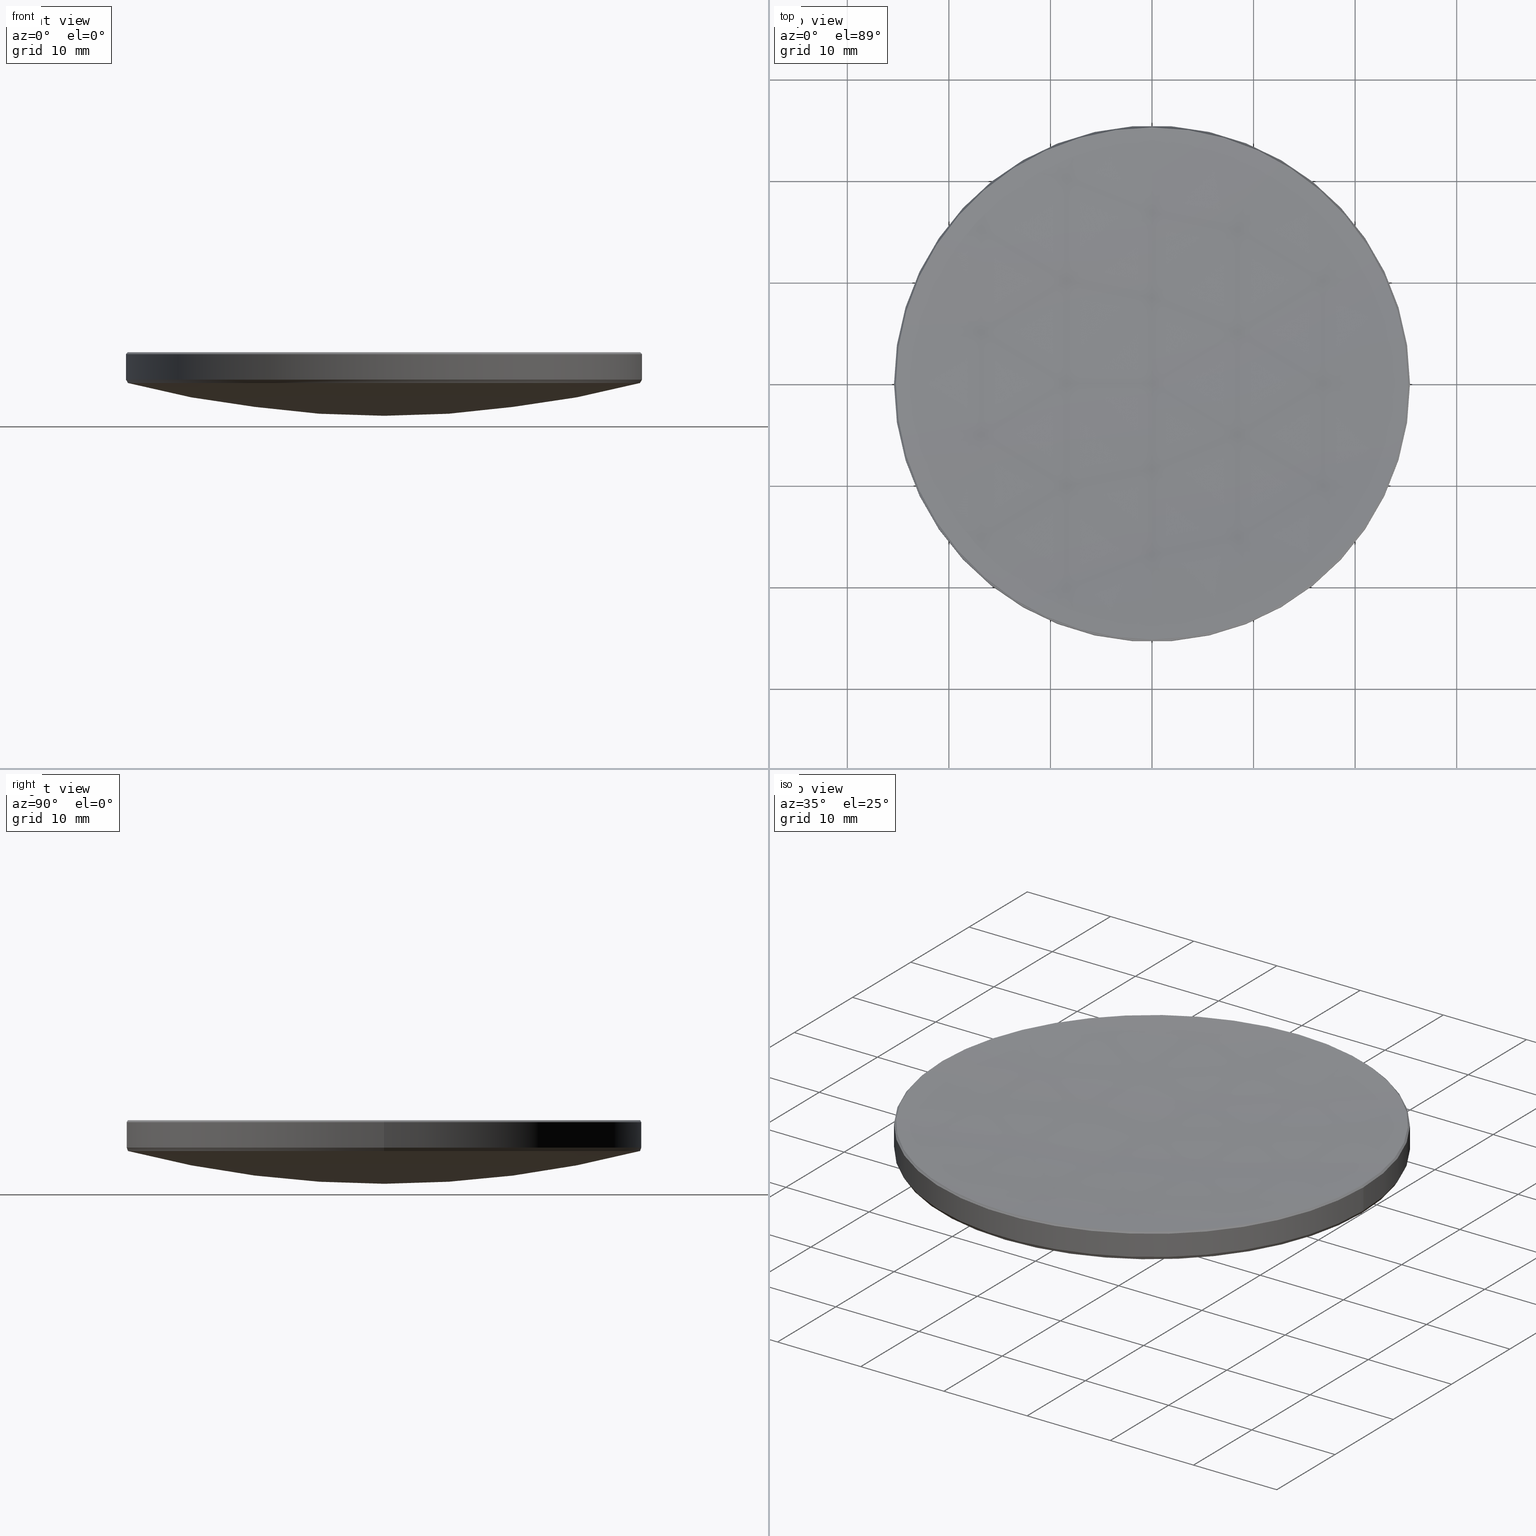
[diagram: canonical four-view strip — front | top / right | iso, engineering-drawing reading convention]
A machine part, canonical four-view strip (front | top / right | iso — engineering-drawing reading convention). The complete STEP part file that produces these views, byte-faithful:
ISO-10303-21;
HEADER;
FILE_DESCRIPTION (( 'STEP AP214' ),
    '1' );
FILE_NAME ('GLM1-050B-300-VIS.STEP',
    '2024-08-09T02:40:26',
    ( 'Windows User' ),
    ( 'P R C' ),
    'SwSTEP 2.0',
    'SolidWorks 2022',
    '' );
FILE_SCHEMA (( 'AUTOMOTIVE_DESIGN' ));
ENDSEC;

DATA;
#1 = ORIENTED_EDGE ( 'NONE', *, *, #6, .T. ) ;
#2 = AXIS2_PLACEMENT_3D ( 'NONE', #86, #295, #62 ) ;
#3 = EDGE_LOOP ( 'NONE', ( #27, #288, #5, #120 ) ) ;
#4 = DIRECTION ( 'NONE',  ( -0.000000000000000000, -0.000000000000000000, -1.000000000000000000 ) ) ;
#5 = ORIENTED_EDGE ( 'NONE', *, *, #77, .T. ) ;
#6 = EDGE_CURVE ( 'NONE', #25, #98, #66, .T. ) ;
#7 = DIRECTION ( 'NONE',  ( -0.000000000000000000, -0.000000000000000000, 1.000000000000000000 ) ) ;
#8 = ADVANCED_BREP_SHAPE_REPRESENTATION ( 'GLM1-050B-300-VIS', ( #217, #56 ), #20 ) ;
#9 = AXIS2_PLACEMENT_3D ( 'NONE', #208, #127, #180 ) ;
#10 = CARTESIAN_POINT ( 'NONE',  ( -25.21668983323140623, 0.000000000000000000, 15.98331016676862681 ) ) ;
#11 = DIRECTION ( 'NONE',  ( 0.000000000000000000, 0.000000000000000000, -1.000000000000000000 ) ) ;
#12 = FACE_OUTER_BOUND ( 'NONE', #306, .T. ) ;
#13 = DIRECTION ( 'NONE',  ( 1.000000000000000000, -0.000000000000000000, 0.000000000000000000 ) ) ;
#14 = CARTESIAN_POINT ( 'NONE',  ( 0.000000000000000000, 0.000000000000000000, 20.00000000000000000 ) ) ;
#15 = CYLINDRICAL_SURFACE ( 'NONE', #296, 25.39999999999999858 ) ;
#16 = EDGE_CURVE ( 'NONE', #144, #52, #269, .T. ) ;
#17 = DIRECTION ( 'NONE',  ( 1.000000000000000000, 0.000000000000000000, 0.000000000000000000 ) ) ;
#18 = AXIS2_PLACEMENT_3D ( 'NONE', #258, #294, #161 ) ;
#19 = ADVANCED_FACE ( 'NONE', ( #58 ), #176, .T. ) ;
#20 =( GEOMETRIC_REPRESENTATION_CONTEXT ( 3 ) GLOBAL_UNCERTAINTY_ASSIGNED_CONTEXT ( ( #272 ) ) GLOBAL_UNIT_ASSIGNED_CONTEXT ( ( #26, #219, #199 ) ) REPRESENTATION_CONTEXT ( 'NONE', 'WORKASPACE' ) );
#21 = VERTEX_POINT ( 'NONE', #266 ) ;
#22 = CARTESIAN_POINT ( 'NONE',  ( 0.000000000000000000, 0.000000000000000000, 293.9618937912173351 ) ) ;
#23 = EDGE_LOOP ( 'NONE', ( #309, #148, #96, #281 ) ) ;
#24 = ORIENTED_EDGE ( 'NONE', *, *, #16, .F. ) ;
#25 = VERTEX_POINT ( 'NONE', #204 ) ;
#26 =( LENGTH_UNIT ( ) NAMED_UNIT ( * ) SI_UNIT ( .MILLI., .METRE. ) );
#27 = ORIENTED_EDGE ( 'NONE', *, *, #142, .F. ) ;
#28 = CARTESIAN_POINT ( 'NONE',  ( 0.000000000000000000, 0.000000000000000000, 109.8031321807306142 ) ) ;
#29 = DIRECTION ( 'NONE',  ( 1.000000000000000000, 0.000000000000000000, 0.000000000000000000 ) ) ;
#30 = UNCERTAINTY_MEASURE_WITH_UNIT (LENGTH_MEASURE( 1.000000000000000082E-05 ), #203, 'distance_accuracy_value', 'NONE');
#31 = CARTESIAN_POINT ( 'NONE',  ( 25.21668983323140623, 3.088153848935844384E-15, 15.98331016676862681 ) ) ;
#32 = DIRECTION ( 'NONE',  ( 1.000000000000000000, 0.000000000000000000, 0.000000000000000000 ) ) ;
#33 = DIRECTION ( 'NONE',  ( 1.000000000000000000, 0.000000000000000000, 0.000000000000000000 ) ) ;
#34 = FACE_OUTER_BOUND ( 'NONE', #147, .T. ) ;
#35 = EDGE_LOOP ( 'NONE', ( #331, #198, #46, #290, #123 ) ) ;
#36 = CARTESIAN_POINT ( 'NONE',  ( 0.000000000000000000, 0.000000000000000000, 15.98331016676862681 ) ) ;
#37 = DIRECTION ( 'NONE',  ( 0.000000000000000000, 0.000000000000000000, -1.000000000000000000 ) ) ;
#38 = CIRCLE ( 'NONE', #215, 25.21668983323140623 ) ;
#39 = FACE_OUTER_BOUND ( 'NONE', #23, .T. ) ;
#40 = EDGE_CURVE ( 'NONE', #21, #71, #202, .T. ) ;
#41 = DIRECTION ( 'NONE',  ( -1.000000000000000000, 0.000000000000000000, 0.000000000000000000 ) ) ;
#42 = CIRCLE ( 'NONE', #329, 25.20669079081241648 ) ;
#43 = AXIS2_PLACEMENT_3D ( 'NONE', #113, #183, #131 ) ;
#44 = AXIS2_PLACEMENT_3D ( 'NONE', #230, #105, #254 ) ;
#45 = CARTESIAN_POINT ( 'NONE',  ( 0.000000000000000000, 6.128132582933356375E-15, 9.723132180730592822 ) ) ;
#46 = ORIENTED_EDGE ( 'NONE', *, *, #305, .F. ) ;
#47 = SURFACE_SIDE_STYLE ('',( #249 ) ) ;
#48 = ORIENTED_EDGE ( 'NONE', *, *, #264, .F. ) ;
#49 = AXIS2_PLACEMENT_3D ( 'NONE', #28, #13, #228 ) ;
#50 = EDGE_CURVE ( 'NONE', #253, #218, #38, .T. ) ;
#51 = ORIENTED_EDGE ( 'NONE', *, *, #248, .F. ) ;
#52 = VERTEX_POINT ( 'NONE', #55 ) ;
#53 = ADVANCED_FACE ( 'NONE', ( #83 ), #60, .T. ) ;
#54 = ORIENTED_EDGE ( 'NONE', *, *, #70, .T. ) ;
#55 = CARTESIAN_POINT ( 'NONE',  ( 25.39999999999999858, 3.110602869834276865E-15, 15.79999999999998117 ) ) ;
#56 = AXIS2_PLACEMENT_3D ( 'NONE', #304, #193, #72 ) ;
#57 = VERTEX_POINT ( 'NONE', #206 ) ;
#58 = FACE_OUTER_BOUND ( 'NONE', #286, .T. ) ;
#59 = CARTESIAN_POINT ( 'NONE',  ( -25.21668983323140623, 0.000000000000000000, 15.98331016676862681 ) ) ;
#60 = SPHERICAL_SURFACE ( 'NONE', #18, 100.0800000000000125 ) ;
#61 = CARTESIAN_POINT ( 'NONE',  ( 0.000000000000000000, 0.000000000000000000, 293.9618937912173351 ) ) ;
#62 = DIRECTION ( 'NONE',  ( 0.000000000000000000, 1.000000000000000000, 0.000000000000000000 ) ) ;
#63 = EDGE_CURVE ( 'NONE', #144, #253, #303, .T. ) ;
#64 = AXIS2_PLACEMENT_3D ( 'NONE', #118, #213, #138 ) ;
#65 = DIRECTION ( 'NONE',  ( -0.000000000000000000, -0.000000000000000000, 1.000000000000000000 ) ) ;
#66 = CIRCLE ( 'NONE', #256, 25.20669079081241648 ) ;
#67 = AXIS2_PLACEMENT_3D ( 'NONE', #263, #7, #33 ) ;
#68 = ORIENTED_EDGE ( 'NONE', *, *, #114, .F. ) ;
#69 =( LENGTH_UNIT ( ) NAMED_UNIT ( * ) SI_UNIT ( .MILLI., .METRE. ) );
#70 = EDGE_CURVE ( 'NONE', #328, #78, #184, .T. ) ;
#71 = VERTEX_POINT ( 'NONE', #80 ) ;
#72 = DIRECTION ( 'NONE',  ( 1.000000000000000000, 0.000000000000000000, 0.000000000000000000 ) ) ;
#73 = ORIENTED_EDGE ( 'NONE', *, *, #226, .F. ) ;
#74 = CIRCLE ( 'NONE', #267, 25.21668983323140623 ) ;
#75 = PRODUCT_CONTEXT ( 'NONE', #244, 'mechanical' ) ;
#76 = VERTEX_POINT ( 'NONE', #210 ) ;
#77 = EDGE_CURVE ( 'NONE', #255, #144, #301, .T. ) ;
#78 = VERTEX_POINT ( 'NONE', #153 ) ;
#79 =( NAMED_UNIT ( * ) PLANE_ANGLE_UNIT ( ) SI_UNIT ( $, .RADIAN. ) );
#80 = CARTESIAN_POINT ( 'NONE',  ( -25.39999999999999858, 0.000000000000000000, 13.28032383718598375 ) ) ;
#81 = CONICAL_SURFACE ( 'NONE', #188, 25.39999999999999858, 0.5287944249354518123 ) ;
#82 = CARTESIAN_POINT ( 'NONE',  ( 0.000000000000000000, 0.000000000000000000, 293.9618937912173351 ) ) ;
#83 = FACE_OUTER_BOUND ( 'NONE', #223, .T. ) ;
#84 = DIRECTION ( 'NONE',  ( 1.000000000000000000, 0.000000000000000000, 0.000000000000000000 ) ) ;
#85 = LINE ( 'NONE', #259, #278 ) ;
#86 = CARTESIAN_POINT ( 'NONE',  ( 0.000000000000000000, 0.000000000000000000, 109.8031321807306142 ) ) ;
#87 = AXIS2_PLACEMENT_3D ( 'NONE', #209, #300, #299 ) ;
#88 = CARTESIAN_POINT ( 'NONE',  ( 0.000000000000000000, 0.000000000000000000, 15.79999999999998117 ) ) ;
#89 = EDGE_CURVE ( 'NONE', #71, #76, #320, .T. ) ;
#90 = DIRECTION ( 'NONE',  ( -1.000000000000000000, 0.000000000000000000, 0.000000000000000000 ) ) ;
#91 = DIRECTION ( 'NONE',  ( -0.000000000000000000, -0.000000000000000000, -1.000000000000000000 ) ) ;
#92 = AXIS2_PLACEMENT_3D ( 'NONE', #61, #238, #37 ) ;
#93 = PRODUCT_DEFINITION_SHAPE ( 'NONE', 'NONE',  #194 ) ;
#94 = EDGE_LOOP ( 'NONE', ( #102, #247, #246, #190 ) ) ;
#95 = EDGE_CURVE ( 'NONE', #218, #21, #110, .T. ) ;
#96 = ORIENTED_EDGE ( 'NONE', *, *, #305, .T. ) ;
#97 = PRODUCT_DEFINITION_FORMATION_WITH_SPECIFIED_SOURCE ( '�κ�', '', #222, .NOT_KNOWN. ) ;
#98 = VERTEX_POINT ( 'NONE', #236 ) ;
#99 = ORIENTED_EDGE ( 'NONE', *, *, #50, .F. ) ;
#100 = CIRCLE ( 'NONE', #92, 279.1200000000000614 ) ;
#101 = CARTESIAN_POINT ( 'NONE',  ( 0.000000000000000000, 1.709117072890046227E-14, 14.84189379121730923 ) ) ;
#102 = ORIENTED_EDGE ( 'NONE', *, *, #325, .F. ) ;
#103 = DIRECTION ( 'NONE',  ( 0.000000000000000000, 1.000000000000000000, 0.000000000000000000 ) ) ;
#104 = CARTESIAN_POINT ( 'NONE',  ( -25.39999999999999858, 0.000000000000000000, 20.00000000000000000 ) ) ;
#105 = DIRECTION ( 'NONE',  ( -0.000000000000000000, -0.000000000000000000, 1.000000000000000000 ) ) ;
#106 = DIRECTION ( 'NONE',  ( -1.000000000000000000, 0.000000000000000000, 0.000000000000000000 ) ) ;
#107 =( GEOMETRIC_REPRESENTATION_CONTEXT ( 3 ) GLOBAL_UNCERTAINTY_ASSIGNED_CONTEXT ( ( #30 ) ) GLOBAL_UNIT_ASSIGNED_CONTEXT ( ( #203, #79, #315 ) ) REPRESENTATION_CONTEXT ( 'NONE', 'WORKASPACE' ) );
#108 = DIRECTION ( 'NONE',  ( -0.000000000000000000, -0.000000000000000000, 1.000000000000000000 ) ) ;
#109 = ADVANCED_FACE ( 'NONE', ( #260 ), #181, .F. ) ;
#110 = LINE ( 'NONE', #10, #141 ) ;
#111 = DIRECTION ( 'NONE',  ( -1.000000000000000000, 0.000000000000000000, 0.000000000000000000 ) ) ;
#112 = VECTOR ( 'NONE', #158, 1000.000000000000114 ) ;
#113 = CARTESIAN_POINT ( 'NONE',  ( 0.000000000000000000, 0.000000000000000000, 13.28032383718598375 ) ) ;
#114 = EDGE_CURVE ( 'NONE', #52, #21, #224, .T. ) ;
#115 = VECTOR ( 'NONE', #116, 1000.000000000000000 ) ;
#116 = DIRECTION ( 'NONE',  ( -0.5044927953932116793, 6.178254870711972724E-17, 0.8634159017509134282 ) ) ;
#117 = CARTESIAN_POINT ( 'NONE',  ( 0.000000000000000000, 0.000000000000000000, 20.00000000000000000 ) ) ;
#118 = CARTESIAN_POINT ( 'NONE',  ( 0.000000000000000000, 0.000000000000000000, 12.94948413701273182 ) ) ;
#119 = ADVANCED_FACE ( 'NONE', ( #12 ), #318, .T. ) ;
#120 = ORIENTED_EDGE ( 'NONE', *, *, #63, .T. ) ;
#121 = ORIENTED_EDGE ( 'NONE', *, *, #89, .F. ) ;
#122 = ORIENTED_EDGE ( 'NONE', *, *, #226, .T. ) ;
#123 = ORIENTED_EDGE ( 'NONE', *, *, #129, .F. ) ;
#124 = EDGE_LOOP ( 'NONE', ( #250, #174, #216, #192 ) ) ;
#125 = PRESENTATION_LAYER_ASSIGNMENT (  '', '', ( #146 ) ) ;
#126 = CARTESIAN_POINT ( 'NONE',  ( 0.000000000000000000, 0.000000000000000000, 12.94948413701273182 ) ) ;
#127 = DIRECTION ( 'NONE',  ( -1.000000000000000000, 1.224646799147353207E-16, 0.000000000000000000 ) ) ;
#128 = DIRECTION ( 'NONE',  ( 1.000000000000000000, 0.000000000000000000, 0.000000000000000000 ) ) ;
#129 = EDGE_CURVE ( 'NONE', #78, #57, #169, .T. ) ;
#130 = CARTESIAN_POINT ( 'NONE',  ( 0.000000000000000000, 25.21668983323133872, 15.98331016676862681 ) ) ;
#131 = DIRECTION ( 'NONE',  ( -1.000000000000000000, 0.000000000000000000, 0.000000000000000000 ) ) ;
#132 = CIRCLE ( 'NONE', #324, 25.39999999999999858 ) ;
#133 = SPHERICAL_SURFACE ( 'NONE', #257, 279.1200000000000614 ) ;
#134 = DIRECTION ( 'NONE',  ( 0.000000000000000000, 1.000000000000000000, 0.000000000000000000 ) ) ;
#135 = DIRECTION ( 'NONE',  ( -0.7071067811864470976, 0.000000000000000000, -0.7071067811866478259 ) ) ;
#136 = LINE ( 'NONE', #242, #115 ) ;
#137 = APPLICATION_CONTEXT ( 'automotive_design' ) ;
#138 = DIRECTION ( 'NONE',  ( 1.000000000000000000, 0.000000000000000000, 0.000000000000000000 ) ) ;
#139 = DIRECTION ( 'NONE',  ( -0.000000000000000000, -0.000000000000000000, -1.000000000000000000 ) ) ;
#140 = PRODUCT_RELATED_PRODUCT_CATEGORY ( 'part', '', ( #222 ) ) ;
#141 = VECTOR ( 'NONE', #135, 1000.000000000000114 ) ;
#142 = EDGE_CURVE ( 'NONE', #310, #253, #100, .T. ) ;
#143 = LINE ( 'NONE', #287, #220 ) ;
#144 = VERTEX_POINT ( 'NONE', #165 ) ;
#145 = FILL_AREA_STYLE_COLOUR ( '', #207 ) ;
#146 = STYLED_ITEM ( 'NONE', ( #273 ), #217 ) ;
#147 = EDGE_LOOP ( 'NONE', ( #171, #326, #51, #285, #99 ) ) ;
#148 = ORIENTED_EDGE ( 'NONE', *, *, #292, .T. ) ;
#149 = SURFACE_STYLE_USAGE ( .BOTH. , #47 ) ;
#150 = ORIENTED_EDGE ( 'NONE', *, *, #70, .F. ) ;
#151 = PRESENTATION_STYLE_ASSIGNMENT (( #149 ) ) ;
#152 = DIRECTION ( 'NONE',  ( -0.000000000000000000, -0.000000000000000000, -1.000000000000000000 ) ) ;
#153 = CARTESIAN_POINT ( 'NONE',  ( 0.000000000000000000, 25.20669079081240582, 12.94948413701272472 ) ) ;
#154 = ADVANCED_FACE ( 'NONE', ( #275 ), #81, .T. ) ;
#155 = DIRECTION ( 'NONE',  ( -1.000000000000000000, 0.000000000000000000, 0.000000000000000000 ) ) ;
#156 = DIRECTION ( 'NONE',  ( 1.000000000000000000, 0.000000000000000000, 0.000000000000000000 ) ) ;
#157 = DIRECTION ( 'NONE',  ( 1.000000000000000000, 0.000000000000000000, 0.000000000000000000 ) ) ;
#158 = DIRECTION ( 'NONE',  ( 0.7071067811864470976, 8.659560562353703961E-17, -0.7071067811866478259 ) ) ;
#159 = CONICAL_SURFACE ( 'NONE', #197, 25.39999999999999858, 0.5287944249354518123 ) ;
#160 = DIRECTION ( 'NONE',  ( 1.000000000000000000, 0.000000000000000000, 0.000000000000000000 ) ) ;
#161 = DIRECTION ( 'NONE',  ( 0.000000000000000000, 1.000000000000000000, 0.000000000000000000 ) ) ;
#162 = CONICAL_SURFACE ( 'NONE', #316, 25.21668983323140623, 0.7853981633973063925 ) ;
#163 = CARTESIAN_POINT ( 'NONE',  ( 0.000000000000000000, 0.000000000000000000, 13.28032383718598375 ) ) ;
#164 = FILL_AREA_STYLE_COLOUR ( '', #214 ) ;
#165 = CARTESIAN_POINT ( 'NONE',  ( 25.21668983323140623, 3.099378359385061019E-15, 15.98331016676862681 ) ) ;
#166 = ADVANCED_FACE ( 'NONE', ( #39 ), #322, .T. ) ;
#167 = CIRCLE ( 'NONE', #44, 25.39999999999999858 ) ;
#168 = EDGE_CURVE ( 'NONE', #98, #71, #136, .T. ) ;
#169 = CIRCLE ( 'NONE', #87, 25.20669079081241648 ) ;
#170 = EDGE_LOOP ( 'NONE', ( #175, #173, #221, #308, #121 ) ) ;
#171 = ORIENTED_EDGE ( 'NONE', *, *, #63, .F. ) ;
#172 = APPLICATION_PROTOCOL_DEFINITION ( 'draft international standard', 'automotive_design', 1998, #137 ) ;
#173 = ORIENTED_EDGE ( 'NONE', *, *, #6, .F. ) ;
#174 = ORIENTED_EDGE ( 'NONE', *, *, #114, .T. ) ;
#175 = ORIENTED_EDGE ( 'NONE', *, *, #168, .F. ) ;
#176 = CONICAL_SURFACE ( 'NONE', #237, 25.21668983323140623, 0.7853981633973063925 ) ;
#177 = EDGE_CURVE ( 'NONE', #57, #25, #211, .T. ) ;
#178 = DIRECTION ( 'NONE',  ( -0.000000000000000000, -0.000000000000000000, 1.000000000000000000 ) ) ;
#179 = DIRECTION ( 'NONE',  ( 1.000000000000000000, 0.000000000000000000, 0.000000000000000000 ) ) ;
#180 = DIRECTION ( 'NONE',  ( -1.224646799147353207E-16, -1.000000000000000000, 0.000000000000000000 ) ) ;
#181 = SPHERICAL_SURFACE ( 'NONE', #313, 279.1200000000000614 ) ;
#182 = CARTESIAN_POINT ( 'NONE',  ( 0.000000000000000000, 0.000000000000000000, 15.98331016676862681 ) ) ;
#183 = DIRECTION ( 'NONE',  ( -0.000000000000000000, -0.000000000000000000, 1.000000000000000000 ) ) ;
#184 = CIRCLE ( 'NONE', #49, 100.0800000000000125 ) ;
#185 = CARTESIAN_POINT ( 'NONE',  ( 0.000000000000000000, 0.000000000000000000, 293.9618937912173351 ) ) ;
#186 = SURFACE_STYLE_USAGE ( .BOTH. , #321 ) ;
#187 = ADVANCED_FACE ( 'NONE', ( #240 ), #15, .T. ) ;
#188 = AXIS2_PLACEMENT_3D ( 'NONE', #163, #65, #17 ) ;
#189 = UNCERTAINTY_MEASURE_WITH_UNIT (LENGTH_MEASURE( 1.000000000000000082E-05 ), #69, 'distance_accuracy_value', 'NONE');
#190 = ORIENTED_EDGE ( 'NONE', *, *, #264, .T. ) ;
#191 =( GEOMETRIC_REPRESENTATION_CONTEXT ( 3 ) GLOBAL_UNCERTAINTY_ASSIGNED_CONTEXT ( ( #189 ) ) GLOBAL_UNIT_ASSIGNED_CONTEXT ( ( #69, #196, #330 ) ) REPRESENTATION_CONTEXT ( 'NONE', 'WORKASPACE' ) );
#192 = ORIENTED_EDGE ( 'NONE', *, *, #89, .T. ) ;
#193 = DIRECTION ( 'NONE',  ( 0.000000000000000000, 0.000000000000000000, 1.000000000000000000 ) ) ;
#194 = PRODUCT_DEFINITION ( 'δ֪', '', #97, #262 ) ;
#195 = ORIENTED_EDGE ( 'NONE', *, *, #95, .T. ) ;
#196 =( NAMED_UNIT ( * ) PLANE_ANGLE_UNIT ( ) SI_UNIT ( $, .RADIAN. ) );
#197 = AXIS2_PLACEMENT_3D ( 'NONE', #293, #108, #157 ) ;
#198 = ORIENTED_EDGE ( 'NONE', *, *, #168, .T. ) ;
#199 =( NAMED_UNIT ( * ) SI_UNIT ( $, .STERADIAN. ) SOLID_ANGLE_UNIT ( ) );
#200 = ORIENTED_EDGE ( 'NONE', *, *, #129, .T. ) ;
#201 = CARTESIAN_POINT ( 'NONE',  ( 0.000000000000000000, 0.000000000000000000, 12.94948413701273182 ) ) ;
#202 = LINE ( 'NONE', #104, #289 ) ;
#203 =( LENGTH_UNIT ( ) NAMED_UNIT ( * ) SI_UNIT ( .MILLI., .METRE. ) );
#204 = CARTESIAN_POINT ( 'NONE',  ( -3.086929319406547016E-15, -25.20669079081240582, 12.94948413701272472 ) ) ;
#205 = AXIS2_PLACEMENT_3D ( 'NONE', #88, #235, #84 ) ;
#206 = CARTESIAN_POINT ( 'NONE',  ( 25.20669079081242003, 0.000000000000000000, 12.94948413701273182 ) ) ;
#207 = COLOUR_RGB ( '',1.000000000000000000, 1.000000000000000000, 1.000000000000000000 ) ;
#208 = CARTESIAN_POINT ( 'NONE',  ( 0.000000000000000000, 0.000000000000000000, 109.8031321807306142 ) ) ;
#209 = CARTESIAN_POINT ( 'NONE',  ( 0.000000000000000000, 0.000000000000000000, 12.94948413701273182 ) ) ;
#210 = CARTESIAN_POINT ( 'NONE',  ( 25.39999999999999858, 3.110602869834276865E-15, 13.28032383718598375 ) ) ;
#211 = CIRCLE ( 'NONE', #64, 25.20669079081241648 ) ;
#212 = SURFACE_STYLE_FILL_AREA ( #270 ) ;
#213 = DIRECTION ( 'NONE',  ( 0.000000000000000000, 0.000000000000000000, -1.000000000000000000 ) ) ;
#214 = COLOUR_RGB ( '',1.000000000000000000, 1.000000000000000000, 1.000000000000000000 ) ;
#215 = AXIS2_PLACEMENT_3D ( 'NONE', #314, #178, #128 ) ;
#216 = ORIENTED_EDGE ( 'NONE', *, *, #40, .T. ) ;
#217 = MANIFOLD_SOLID_BREP ( '����2', #302 ) ;
#218 = VERTEX_POINT ( 'NONE', #59 ) ;
#219 =( NAMED_UNIT ( * ) PLANE_ANGLE_UNIT ( ) SI_UNIT ( $, .RADIAN. ) );
#220 = VECTOR ( 'NONE', #251, 1000.000000000000000 ) ;
#221 = ORIENTED_EDGE ( 'NONE', *, *, #177, .F. ) ;
#222 = PRODUCT ( 'GLM1-050B-300-VIS', 'GLM1-050B-300-VIS', '', ( #75 ) ) ;
#223 = EDGE_LOOP ( 'NONE', ( #73, #54, #200, #307 ) ) ;
#224 = CIRCLE ( 'NONE', #205, 25.39999999999999858 ) ;
#225 = ORIENTED_EDGE ( 'NONE', *, *, #77, .F. ) ;
#226 = EDGE_CURVE ( 'NONE', #328, #25, #284, .T. ) ;
#227 = DIRECTION ( 'NONE',  ( -1.000000000000000000, 1.224646799147353207E-16, 0.000000000000000000 ) ) ;
#228 = DIRECTION ( 'NONE',  ( 0.000000000000000000, 0.000000000000000000, -1.000000000000000000 ) ) ;
#229 = MECHANICAL_DESIGN_GEOMETRIC_PRESENTATION_REPRESENTATION (  '', ( #245 ), #191 ) ;
#230 = CARTESIAN_POINT ( 'NONE',  ( 0.000000000000000000, 0.000000000000000000, 13.28032383718598375 ) ) ;
#231 = CARTESIAN_POINT ( 'NONE',  ( 0.000000000000000000, 0.000000000000000000, 15.98331016676862681 ) ) ;
#232 = CARTESIAN_POINT ( 'NONE',  ( 0.000000000000000000, 0.000000000000000000, 15.98331016676862681 ) ) ;
#233 = DIRECTION ( 'NONE',  ( 0.000000000000000000, 0.000000000000000000, -1.000000000000000000 ) ) ;
#234 = DIRECTION ( 'NONE',  ( 0.000000000000000000, 0.000000000000000000, -1.000000000000000000 ) ) ;
#235 = DIRECTION ( 'NONE',  ( 0.000000000000000000, 0.000000000000000000, -1.000000000000000000 ) ) ;
#236 = CARTESIAN_POINT ( 'NONE',  ( -25.20669079081242003, 3.098766094620413518E-15, 12.94948413701273182 ) ) ;
#237 = AXIS2_PLACEMENT_3D ( 'NONE', #231, #298, #106 ) ;
#238 = DIRECTION ( 'NONE',  ( 1.000000000000000000, 0.000000000000000000, 0.000000000000000000 ) ) ;
#239 = ADVANCED_FACE ( 'NONE', ( #291 ), #133, .F. ) ;
#240 = FACE_OUTER_BOUND ( 'NONE', #124, .T. ) ;
#241 = PRESENTATION_LAYER_ASSIGNMENT (  '', '', ( #245 ) ) ;
#242 = CARTESIAN_POINT ( 'NONE',  ( -25.39999999999999858, 3.110602869834276865E-15, 13.28032383718598375 ) ) ;
#243 = AXIS2_PLACEMENT_3D ( 'NONE', #36, #312, #156 ) ;
#244 = APPLICATION_CONTEXT ( 'automotive_design' ) ;
#245 = STYLED_ITEM ( 'NONE', ( #151 ), #8 ) ;
#246 = ORIENTED_EDGE ( 'NONE', *, *, #50, .T. ) ;
#247 = ORIENTED_EDGE ( 'NONE', *, *, #142, .T. ) ;
#248 = EDGE_CURVE ( 'NONE', #21, #52, #132, .T. ) ;
#249 = SURFACE_STYLE_FILL_AREA ( #332 ) ;
#250 = ORIENTED_EDGE ( 'NONE', *, *, #292, .F. ) ;
#251 = DIRECTION ( 'NONE',  ( 0.5044927953932116793, 0.000000000000000000, 0.8634159017509134282 ) ) ;
#252 = CIRCLE ( 'NONE', #276, 279.1200000000000614 ) ;
#253 = VERTEX_POINT ( 'NONE', #130 ) ;
#254 = DIRECTION ( 'NONE',  ( -1.000000000000000000, 0.000000000000000000, 0.000000000000000000 ) ) ;
#255 = VERTEX_POINT ( 'NONE', #265 ) ;
#256 = AXIS2_PLACEMENT_3D ( 'NONE', #126, #233, #179 ) ;
#257 = AXIS2_PLACEMENT_3D ( 'NONE', #82, #155, #103 ) ;
#258 = CARTESIAN_POINT ( 'NONE',  ( 0.000000000000000000, 0.000000000000000000, 109.8031321807306142 ) ) ;
#259 = CARTESIAN_POINT ( 'NONE',  ( 25.39999999999999858, 3.110602869834276865E-15, 20.00000000000000000 ) ) ;
#260 = FACE_OUTER_BOUND ( 'NONE', #3, .T. ) ;
#261 = CARTESIAN_POINT ( 'NONE',  ( 0.000000000000000000, 0.000000000000000000, 15.79999999999998117 ) ) ;
#262 = PRODUCT_DEFINITION_CONTEXT ( 'detailed design', #137, 'design' ) ;
#263 = CARTESIAN_POINT ( 'NONE',  ( 0.000000000000000000, 0.000000000000000000, 15.98331016676862681 ) ) ;
#264 = EDGE_CURVE ( 'NONE', #218, #255, #74, .T. ) ;
#265 = CARTESIAN_POINT ( 'NONE',  ( -3.088153848935836496E-15, -25.21668983323133872, 15.98331016676862681 ) ) ;
#266 = CARTESIAN_POINT ( 'NONE',  ( -25.39999999999999858, 0.000000000000000000, 15.79999999999998117 ) ) ;
#267 = AXIS2_PLACEMENT_3D ( 'NONE', #232, #317, #160 ) ;
#268 = FACE_OUTER_BOUND ( 'NONE', #170, .T. ) ;
#269 = LINE ( 'NONE', #31, #112 ) ;
#270 = FILL_AREA_STYLE ('',( #164 ) ) ;
#271 = ADVANCED_FACE ( 'NONE', ( #268 ), #159, .T. ) ;
#272 = UNCERTAINTY_MEASURE_WITH_UNIT (LENGTH_MEASURE( 1.000000000000000082E-05 ), #26, 'distance_accuracy_value', 'NONE');
#273 = PRESENTATION_STYLE_ASSIGNMENT (( #186 ) ) ;
#274 = MECHANICAL_DESIGN_GEOMETRIC_PRESENTATION_REPRESENTATION (  '', ( #146 ), #107 ) ;
#275 = FACE_OUTER_BOUND ( 'NONE', #35, .T. ) ;
#276 = AXIS2_PLACEMENT_3D ( 'NONE', #22, #227, #327 ) ;
#277 = AXIS2_PLACEMENT_3D ( 'NONE', #14, #139, #90 ) ;
#278 = VECTOR ( 'NONE', #4, 1000.000000000000000 ) ;
#279 = APPLICATION_PROTOCOL_DEFINITION ( 'draft international standard', 'automotive_design', 1998, #244 ) ;
#280 = ADVANCED_FACE ( 'NONE', ( #34 ), #162, .T. ) ;
#281 = ORIENTED_EDGE ( 'NONE', *, *, #40, .F. ) ;
#282 = ORIENTED_EDGE ( 'NONE', *, *, #297, .T. ) ;
#283 = SHAPE_DEFINITION_REPRESENTATION ( #93, #8 ) ;
#284 = CIRCLE ( 'NONE', #9, 100.0800000000000125 ) ;
#285 = ORIENTED_EDGE ( 'NONE', *, *, #95, .F. ) ;
#286 = EDGE_LOOP ( 'NONE', ( #24, #225, #48, #195, #68 ) ) ;
#287 = CARTESIAN_POINT ( 'NONE',  ( 25.39999999999999858, 0.000000000000000000, 13.28032383718598375 ) ) ;
#288 = ORIENTED_EDGE ( 'NONE', *, *, #325, .T. ) ;
#289 = VECTOR ( 'NONE', #152, 1000.000000000000000 ) ;
#290 = ORIENTED_EDGE ( 'NONE', *, *, #323, .F. ) ;
#291 = FACE_OUTER_BOUND ( 'NONE', #94, .T. ) ;
#292 = EDGE_CURVE ( 'NONE', #52, #76, #85, .T. ) ;
#293 = CARTESIAN_POINT ( 'NONE',  ( 0.000000000000000000, 0.000000000000000000, 13.28032383718598375 ) ) ;
#294 = DIRECTION ( 'NONE',  ( -1.000000000000000000, 0.000000000000000000, 0.000000000000000000 ) ) ;
#295 = DIRECTION ( 'NONE',  ( -1.000000000000000000, 0.000000000000000000, 0.000000000000000000 ) ) ;
#296 = AXIS2_PLACEMENT_3D ( 'NONE', #117, #91, #41 ) ;
#297 = EDGE_CURVE ( 'NONE', #98, #78, #42, .T. ) ;
#298 = DIRECTION ( 'NONE',  ( 0.000000000000000000, 0.000000000000000000, -1.000000000000000000 ) ) ;
#299 = DIRECTION ( 'NONE',  ( 1.000000000000000000, 0.000000000000000000, 0.000000000000000000 ) ) ;
#300 = DIRECTION ( 'NONE',  ( 0.000000000000000000, 0.000000000000000000, -1.000000000000000000 ) ) ;
#301 = CIRCLE ( 'NONE', #67, 25.21668983323140623 ) ;
#302 = CLOSED_SHELL ( 'NONE', ( #154, #280, #109, #119, #166, #187, #53, #239, #19, #271 ) ) ;
#303 = CIRCLE ( 'NONE', #243, 25.21668983323140623 ) ;
#304 = CARTESIAN_POINT ( 'NONE',  ( 0.000000000000000000, 0.000000000000000000, 0.000000000000000000 ) ) ;
#305 = EDGE_CURVE ( 'NONE', #76, #71, #167, .T. ) ;
#306 = EDGE_LOOP ( 'NONE', ( #150, #122, #1, #282 ) ) ;
#307 = ORIENTED_EDGE ( 'NONE', *, *, #177, .T. ) ;
#308 = ORIENTED_EDGE ( 'NONE', *, *, #323, .T. ) ;
#309 = ORIENTED_EDGE ( 'NONE', *, *, #248, .T. ) ;
#310 = VERTEX_POINT ( 'NONE', #101 ) ;
#311 = DIRECTION ( 'NONE',  ( 0.000000000000000000, 0.000000000000000000, -1.000000000000000000 ) ) ;
#312 = DIRECTION ( 'NONE',  ( -0.000000000000000000, -0.000000000000000000, 1.000000000000000000 ) ) ;
#313 = AXIS2_PLACEMENT_3D ( 'NONE', #185, #319, #134 ) ;
#314 = CARTESIAN_POINT ( 'NONE',  ( 0.000000000000000000, 0.000000000000000000, 15.98331016676862681 ) ) ;
#315 =( NAMED_UNIT ( * ) SI_UNIT ( $, .STERADIAN. ) SOLID_ANGLE_UNIT ( ) );
#316 = AXIS2_PLACEMENT_3D ( 'NONE', #182, #11, #111 ) ;
#317 = DIRECTION ( 'NONE',  ( -0.000000000000000000, -0.000000000000000000, 1.000000000000000000 ) ) ;
#318 = SPHERICAL_SURFACE ( 'NONE', #2, 100.0800000000000125 ) ;
#319 = DIRECTION ( 'NONE',  ( -1.000000000000000000, 0.000000000000000000, 0.000000000000000000 ) ) ;
#320 = CIRCLE ( 'NONE', #43, 25.39999999999999858 ) ;
#321 = SURFACE_SIDE_STYLE ('',( #212 ) ) ;
#322 = CYLINDRICAL_SURFACE ( 'NONE', #277, 25.39999999999999858 ) ;
#323 = EDGE_CURVE ( 'NONE', #57, #76, #143, .T. ) ;
#324 = AXIS2_PLACEMENT_3D ( 'NONE', #261, #234, #32 ) ;
#325 = EDGE_CURVE ( 'NONE', #310, #255, #252, .T. ) ;
#326 = ORIENTED_EDGE ( 'NONE', *, *, #16, .T. ) ;
#327 = DIRECTION ( 'NONE',  ( -1.224646799147352961E-16, -1.000000000000000000, 0.000000000000000000 ) ) ;
#328 = VERTEX_POINT ( 'NONE', #45 ) ;
#329 = AXIS2_PLACEMENT_3D ( 'NONE', #201, #311, #29 ) ;
#330 =( NAMED_UNIT ( * ) SI_UNIT ( $, .STERADIAN. ) SOLID_ANGLE_UNIT ( ) );
#331 = ORIENTED_EDGE ( 'NONE', *, *, #297, .F. ) ;
#332 = FILL_AREA_STYLE ('',( #145 ) ) ;
ENDSEC;
END-ISO-10303-21;
